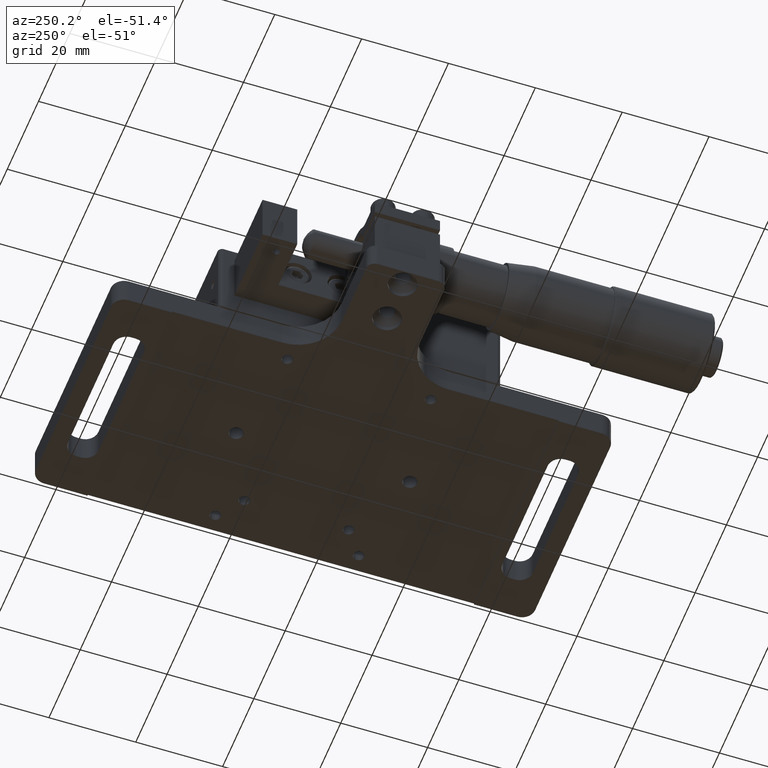
[diagram: clean part render]
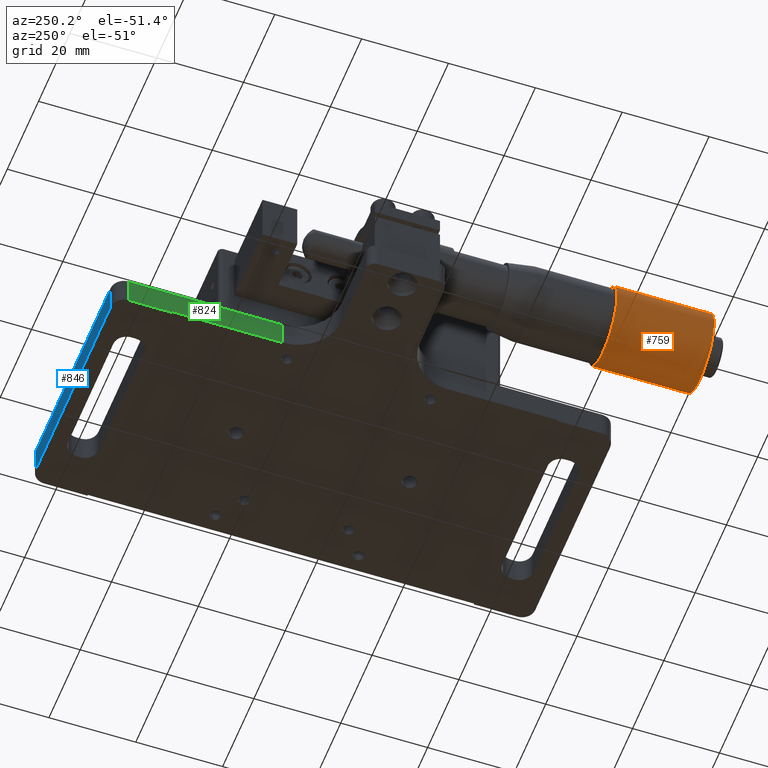
[diagram: same view with three faces highlighted in distinct colors, each labeled with its STEP entity id]
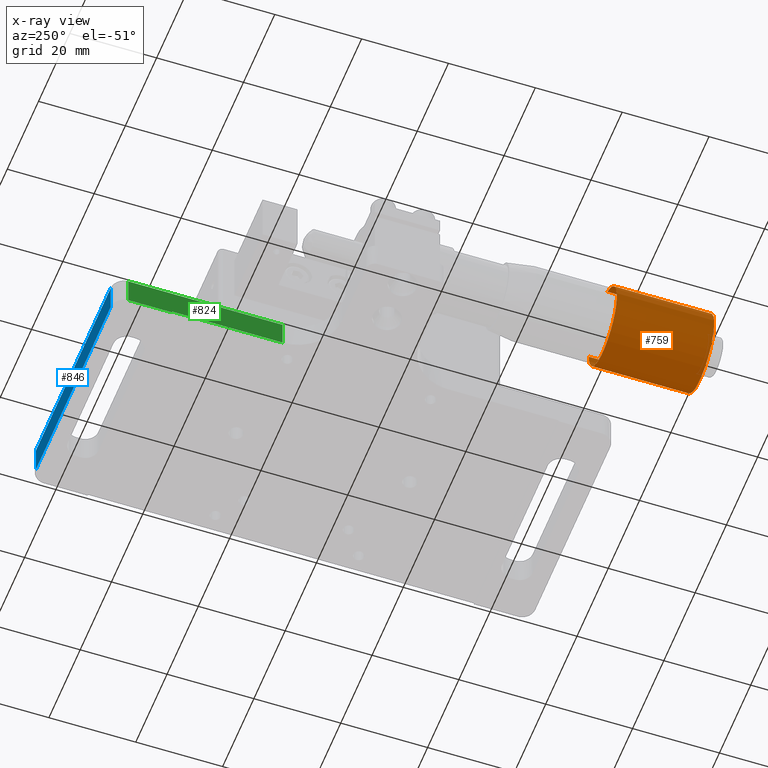
[diagram: x-ray of the same camera — body ghosted, the three highlighted faces saturated]
A machine part, auxiliary view with three faces highlighted in distinct colors.
The next image is the same camera in x-ray (body ghosted, the three faces saturated) — at least one of them is partly hidden behind the body in this view.
Their STEP definitions:

[orange] entity #759 — the highlighted face is a freeform B-spline surface patch.
#759=ADVANCED_FACE('',(#1412),#24285,.T.);
#1412=FACE_OUTER_BOUND('',#2154,.T.);
#2154=EDGE_LOOP('',(#4588,#4589,#4590,#4591,#4592,#4593));
#4588=ORIENTED_EDGE('',*,*,#20337,.T.);
#4589=ORIENTED_EDGE('',*,*,#20338,.T.);
#4590=ORIENTED_EDGE('',*,*,#20339,.T.);
#4591=ORIENTED_EDGE('',*,*,#20328,.F.);
#4592=ORIENTED_EDGE('',*,*,#20331,.F.);
#4593=ORIENTED_EDGE('',*,*,#20340,.T.);
#8201=PCURVE('',#24283,#11826);
#8204=PCURVE('',#24284,#11829);
#8213=PCURVE('',#24285,#11838);
#8214=PCURVE('',#24285,#11839);
#8215=PCURVE('',#24285,#11840);
#8216=PCURVE('',#24285,#11841);
#8217=PCURVE('',#24285,#11842);
#8218=PCURVE('',#24285,#11843);
#8220=PCURVE('',#24286,#11845);
#8222=PCURVE('',#24286,#11847);
#8224=PCURVE('',#24287,#11849);
#8230=PCURVE('',#24288,#11855);
#11826=DEFINITIONAL_REPRESENTATION('',(#15818),#50008);
#11829=DEFINITIONAL_REPRESENTATION('',(#15822),#50008);
#11838=DEFINITIONAL_REPRESENTATION('',(#15826),#50008);
#11839=DEFINITIONAL_REPRESENTATION('',(#15827),#50008);
#11840=DEFINITIONAL_REPRESENTATION('',(#15829),#50008);
#11841=DEFINITIONAL_REPRESENTATION('',(#15830),#50008);
#11842=DEFINITIONAL_REPRESENTATION('',(#15831),#50008);
#11843=DEFINITIONAL_REPRESENTATION('',(#15833),#50008);
#11845=DEFINITIONAL_REPRESENTATION('',(#15835),#50008);
#11847=DEFINITIONAL_REPRESENTATION('',(#15837),#50008);
#11849=DEFINITIONAL_REPRESENTATION('',(#15839),#50008);
#11855=DEFINITIONAL_REPRESENTATION('',(#15847),#50008);
#15818=B_SPLINE_CURVE_WITH_KNOTS('',1,(#39859,#39860),.UNSPECIFIED.,.F.,
 .F.,(2,2),(28.2743338823082,39.4229033643207),.UNSPECIFIED.);
#15822=B_SPLINE_CURVE_WITH_KNOTS('',1,(#39877,#39878),.UNSPECIFIED.,.F.,
 .F.,(2,2),(0.,28.2743338823082),.UNSPECIFIED.);
#15826=B_SPLINE_CURVE_WITH_KNOTS('',1,(#39936,#39937),.UNSPECIFIED.,.F.,
 .F.,(2,2),(-56.5486677646163,-28.2743338823081),.UNSPECIFIED.);
#15827=B_SPLINE_CURVE_WITH_KNOTS('',1,(#39941,#39942),.UNSPECIFIED.,.F.,
 .F.,(2,2),(-28.2743338823081,-17.1257644002956),.UNSPECIFIED.);
#15828=B_SPLINE_CURVE_WITH_KNOTS('',1,(#39943,#39944),.UNSPECIFIED.,.F.,
 .F.,(2,2),(2.36,24.76),.UNSPECIFIED.);
#15829=B_SPLINE_CURVE_WITH_KNOTS('',1,(#39945,#39946),.UNSPECIFIED.,.F.,
 .F.,(2,2),(2.36,24.76),.UNSPECIFIED.);
#15830=B_SPLINE_CURVE_WITH_KNOTS('',1,(#39947,#39948),.UNSPECIFIED.,.F.,
 .F.,(2,2),(28.2743338823082,39.4229033643207),.UNSPECIFIED.);
#15831=B_SPLINE_CURVE_WITH_KNOTS('',1,(#39949,#39950),.UNSPECIFIED.,.F.,
 .F.,(2,2),(0.,28.2743338823082),.UNSPECIFIED.);
#15832=B_SPLINE_CURVE_WITH_KNOTS('',1,(#39951,#39952),.UNSPECIFIED.,.F.,
 .F.,(2,2),(0.,22.4),.UNSPECIFIED.);
#15833=B_SPLINE_CURVE_WITH_KNOTS('',1,(#39953,#39954),.UNSPECIFIED.,.F.,
 .F.,(2,2),(0.,22.4),.UNSPECIFIED.);
#15835=B_SPLINE_CURVE_WITH_KNOTS('',1,(#39957,#39958),.UNSPECIFIED.,.F.,
 .F.,(2,2),(2.36,24.76),.UNSPECIFIED.);
#15837=B_SPLINE_CURVE_WITH_KNOTS('',1,(#39966,#39967),.UNSPECIFIED.,.F.,
 .F.,(2,2),(0.,22.4),.UNSPECIFIED.);
#15839=B_SPLINE_CURVE_WITH_KNOTS('',1,(#39970,#39971),.UNSPECIFIED.,.F.,
 .F.,(2,2),(-28.2743338823081,-17.1257644002956),.UNSPECIFIED.);
#15847=B_SPLINE_CURVE_WITH_KNOTS('',1,(#39986,#39987),.UNSPECIFIED.,.F.,
 .F.,(2,2),(-56.5486677646163,-28.2743338823081),.UNSPECIFIED.);
#18473=SURFACE_CURVE('',#21816,(#8201,#8216),.PCURVE_S1.);
#18476=SURFACE_CURVE('',#21818,(#8204,#8217),.PCURVE_S1.);
#18482=SURFACE_CURVE('',#21829,(#8213,#8230),.PCURVE_S1.);
#18483=SURFACE_CURVE('',#21830,(#8214,#8224),.PCURVE_S1.);
#18484=SURFACE_CURVE('',#15828,(#8215,#8220),.PCURVE_S1.);
#18485=SURFACE_CURVE('',#15832,(#8218,#8222),.PCURVE_S1.);
#20328=EDGE_CURVE('',#23308,#23315,#18473,.T.);
#20331=EDGE_CURVE('',#23307,#23308,#18476,.T.);
#20337=EDGE_CURVE('',#23313,#23316,#18482,.T.);
#20338=EDGE_CURVE('',#23316,#23314,#18483,.T.);
#20339=EDGE_CURVE('',#23314,#23315,#18484,.T.);
#20340=EDGE_CURVE('',#23307,#23313,#18485,.T.);
#21816=(
BOUNDED_CURVE()
B_SPLINE_CURVE(2,(#39856,#39857,#39858),.UNSPECIFIED.,.F.,.F.)
B_SPLINE_CURVE_WITH_KNOTS((3,3),(28.2743338823082,39.4229033643207),
 .UNSPECIFIED.)
CURVE()
GEOMETRIC_REPRESENTATION_ITEM()
RATIONAL_B_SPLINE_CURVE((1.,0.814247266582234,1.))
REPRESENTATION_ITEM('')
);
#21818=(
BOUNDED_CURVE()
B_SPLINE_CURVE(2,(#39872,#39873,#39874,#39875,#39876),.UNSPECIFIED.,.F.,
 .F.)
B_SPLINE_CURVE_WITH_KNOTS((3,2,3),(0.,14.1371669411541,28.2743338823082),
 .UNSPECIFIED.)
CURVE()
GEOMETRIC_REPRESENTATION_ITEM()
RATIONAL_B_SPLINE_CURVE((1.,0.707106781186547,1.,0.707106781186547,1.))
REPRESENTATION_ITEM('')
);
#21829=(
BOUNDED_CURVE()
B_SPLINE_CURVE(2,(#39931,#39932,#39933,#39934,#39935),.UNSPECIFIED.,.F.,
 .F.)
B_SPLINE_CURVE_WITH_KNOTS((3,2,3),(-56.5486677646163,-42.4115008234622,
-28.2743338823081),.UNSPECIFIED.)
CURVE()
GEOMETRIC_REPRESENTATION_ITEM()
RATIONAL_B_SPLINE_CURVE((1.,0.707106781186548,1.,0.707106781186548,1.))
REPRESENTATION_ITEM('')
);
#21830=(
BOUNDED_CURVE()
B_SPLINE_CURVE(2,(#39938,#39939,#39940),.UNSPECIFIED.,.F.,.F.)
B_SPLINE_CURVE_WITH_KNOTS((3,3),(-28.2743338823081,-17.1257644002956),
 .UNSPECIFIED.)
CURVE()
GEOMETRIC_REPRESENTATION_ITEM()
RATIONAL_B_SPLINE_CURVE((1.,0.814247266582233,1.))
REPRESENTATION_ITEM('')
);
#23307=VERTEX_POINT('',#30950);
#23308=VERTEX_POINT('',#30951);
#23313=VERTEX_POINT('',#30956);
#23314=VERTEX_POINT('',#30957);
#23315=VERTEX_POINT('',#30958);
#23316=VERTEX_POINT('',#30959);
#24283=(
BOUNDED_SURFACE()
B_SPLINE_SURFACE(2,1,((#28131,#28132),(#28133,#28134),(#28135,#28136),(#28137,
#28138),(#28139,#28140),(#28141,#28142),(#28143,#28144),(#28145,#28146),
(#28147,#28148)),.UNSPECIFIED.,.T.,.F.,.F.)
B_SPLINE_SURFACE_WITH_KNOTS((3,2,2,2,3),(2,2),(0.,1.5707963267949,3.14159265358979,
4.71238898038469,6.28318530717959),(0.,14.1704198949785),.UNSPECIFIED.)
GEOMETRIC_REPRESENTATION_ITEM()
RATIONAL_B_SPLINE_SURFACE(((1.,1.),(0.707106781186548,0.707106781186548),
(1.,1.),(0.707106781186548,0.707106781186548),(1.,1.),(0.707106781186548,
0.707106781186548),(1.,1.),(0.707106781186548,0.707106781186548),(1.,1.)))
REPRESENTATION_ITEM('')
SURFACE()
);
#24284=(
BOUNDED_SURFACE()
B_SPLINE_SURFACE(2,1,((#28149,#28150),(#28151,#28152),(#28153,#28154),(#28155,
#28156),(#28157,#28158),(#28159,#28160),(#28161,#28162),(#28163,#28164),
(#28165,#28166)),.UNSPECIFIED.,.T.,.F.,.F.)
B_SPLINE_SURFACE_WITH_KNOTS((3,2,2,2,3),(2,2),(0.,1.5707963267949,3.14159265358979,
4.71238898038469,6.28318530717959),(0.,14.1704198949785),.UNSPECIFIED.)
GEOMETRIC_REPRESENTATION_ITEM()
RATIONAL_B_SPLINE_SURFACE(((1.,1.),(0.707106781186548,0.707106781186548),
(1.,1.),(0.707106781186548,0.707106781186548),(1.,1.),(0.707106781186548,
0.707106781186548),(1.,1.),(0.707106781186548,0.707106781186548),(1.,1.)))
REPRESENTATION_ITEM('')
SURFACE()
);
#24285=(
BOUNDED_SURFACE()
B_SPLINE_SURFACE(2,1,((#28171,#28172),(#28173,#28174),(#28175,#28176),(#28177,
#28178),(#28179,#28180),(#28181,#28182),(#28183,#28184),(#28185,#28186),
(#28187,#28188)),.UNSPECIFIED.,.T.,.F.,.F.)
B_SPLINE_SURFACE_WITH_KNOTS((3,2,2,2,3),(2,2),(0.,1.5707963267949,3.14159265358979,
4.71238898038469,6.28318530717959),(0.,27.12),.UNSPECIFIED.)
GEOMETRIC_REPRESENTATION_ITEM()
RATIONAL_B_SPLINE_SURFACE(((1.,1.),(0.707106781186548,0.707106781186548),
(1.,1.),(0.707106781186548,0.707106781186548),(1.,1.),(0.707106781186548,
0.707106781186548),(1.,1.),(0.707106781186548,0.707106781186548),(1.,1.)))
REPRESENTATION_ITEM('')
SURFACE()
);
#24286=(
BOUNDED_SURFACE()
B_SPLINE_SURFACE(2,1,((#28189,#28190),(#28191,#28192),(#28193,#28194),(#28195,
#28196),(#28197,#28198),(#28199,#28200),(#28201,#28202),(#28203,#28204),
(#28205,#28206)),.UNSPECIFIED.,.T.,.F.,.F.)
B_SPLINE_SURFACE_WITH_KNOTS((3,2,2,2,3),(2,2),(0.,1.5707963267949,3.14159265358979,
4.71238898038469,6.28318530717959),(0.,27.12),.UNSPECIFIED.)
GEOMETRIC_REPRESENTATION_ITEM()
RATIONAL_B_SPLINE_SURFACE(((1.,1.),(0.707106781186548,0.707106781186548),
(1.,1.),(0.707106781186548,0.707106781186548),(1.,1.),(0.707106781186548,
0.707106781186548),(1.,1.),(0.707106781186548,0.707106781186548),(1.,1.)))
REPRESENTATION_ITEM('')
SURFACE()
);
#24287=(
BOUNDED_SURFACE()
B_SPLINE_SURFACE(2,1,((#28207,#28208),(#28209,#28210),(#28211,#28212),(#28213,
#28214),(#28215,#28216),(#28217,#28218),(#28219,#28220),(#28221,#28222),
(#28223,#28224)),.UNSPECIFIED.,.T.,.F.,.F.)
B_SPLINE_SURFACE_WITH_KNOTS((3,2,2,2,3),(2,2),(0.,1.5707963267949,3.14159265358979,
4.71238898038469,6.28318530717959),(0.,14.1704198949785),.UNSPECIFIED.)
GEOMETRIC_REPRESENTATION_ITEM()
RATIONAL_B_SPLINE_SURFACE(((1.,1.),(0.707106781186548,0.707106781186548),
(1.,1.),(0.707106781186548,0.707106781186548),(1.,1.),(0.707106781186548,
0.707106781186548),(1.,1.),(0.707106781186548,0.707106781186548),(1.,1.)))
REPRESENTATION_ITEM('')
SURFACE()
);
#24288=(
BOUNDED_SURFACE()
B_SPLINE_SURFACE(2,1,((#28225,#28226),(#28227,#28228),(#28229,#28230),(#28231,
#28232),(#28233,#28234),(#28235,#28236),(#28237,#28238),(#28239,#28240),
(#28241,#28242)),.UNSPECIFIED.,.T.,.F.,.F.)
B_SPLINE_SURFACE_WITH_KNOTS((3,2,2,2,3),(2,2),(0.,1.5707963267949,3.14159265358979,
4.71238898038469,6.28318530717959),(0.,14.1704198949785),.UNSPECIFIED.)
GEOMETRIC_REPRESENTATION_ITEM()
RATIONAL_B_SPLINE_SURFACE(((1.,1.),(0.707106781186548,0.707106781186548),
(1.,1.),(0.707106781186548,0.707106781186548),(1.,1.),(0.707106781186548,
0.707106781186548),(1.,1.),(0.707106781186548,0.707106781186548),(1.,1.)))
REPRESENTATION_ITEM('')
SURFACE()
);
#28131=CARTESIAN_POINT('',(-40.872950650202,3.23319641562345,96.5500000000002));
#28132=CARTESIAN_POINT('',(-37.6064584830237,-6.23941826680523,86.5300000000001));
#28133=CARTESIAN_POINT('',(-40.872950650202,3.23319641562345,96.5500000000002));
#28134=CARTESIAN_POINT('',(-47.0790731654524,-9.50591043398352,86.5300000000001));
#28135=CARTESIAN_POINT('',(-40.872950650202,3.23319641562345,96.5500000000002));
#28136=CARTESIAN_POINT('',(-50.3455653326307,-0.0332957515548427,86.5300000000001));
#28137=CARTESIAN_POINT('',(-40.872950650202,3.23319641562345,96.5500000000002));
#28138=CARTESIAN_POINT('',(-53.612057499809,9.43931893087383,86.5300000000001));
#28139=CARTESIAN_POINT('',(-40.872950650202,3.23319641562345,96.5500000000002));
#28140=CARTESIAN_POINT('',(-44.1394428173803,12.7058110980521,86.5300000000001));
#28141=CARTESIAN_POINT('',(-40.872950650202,3.23319641562345,96.5500000000002));
#28142=CARTESIAN_POINT('',(-34.6668281349516,15.9723032652304,86.5300000000001));
#28143=CARTESIAN_POINT('',(-40.872950650202,3.23319641562345,96.5500000000002));
#28144=CARTESIAN_POINT('',(-31.4003359677733,6.49968858280174,86.5300000000001));
#28145=CARTESIAN_POINT('',(-40.872950650202,3.23319641562345,96.5500000000002));
#28146=CARTESIAN_POINT('',(-28.133843800595,-2.97292609962693,86.5300000000001));
#28147=CARTESIAN_POINT('',(-40.872950650202,3.23319641562345,96.5500000000002));
#28148=CARTESIAN_POINT('',(-37.6064584830237,-6.23941826680523,86.5300000000001));
#28149=CARTESIAN_POINT('',(-40.872950650202,3.23319641562345,96.5500000000002));
#28150=CARTESIAN_POINT('',(-37.6064584830237,-6.23941826680523,86.5300000000001));
#28151=CARTESIAN_POINT('',(-40.872950650202,3.23319641562345,96.5500000000002));
#28152=CARTESIAN_POINT('',(-47.0790731654524,-9.50591043398352,86.5300000000001));
#28153=CARTESIAN_POINT('',(-40.872950650202,3.23319641562345,96.5500000000002));
#28154=CARTESIAN_POINT('',(-50.3455653326307,-0.0332957515548427,86.5300000000001));
#28155=CARTESIAN_POINT('',(-40.872950650202,3.23319641562345,96.5500000000002));
#28156=CARTESIAN_POINT('',(-53.612057499809,9.43931893087383,86.5300000000001));
#28157=CARTESIAN_POINT('',(-40.872950650202,3.23319641562345,96.5500000000002));
#28158=CARTESIAN_POINT('',(-44.1394428173803,12.7058110980521,86.5300000000001));
#28159=CARTESIAN_POINT('',(-40.872950650202,3.23319641562345,96.5500000000002));
#28160=CARTESIAN_POINT('',(-34.6668281349516,15.9723032652304,86.5300000000001));
#28161=CARTESIAN_POINT('',(-40.872950650202,3.23319641562345,96.5500000000002));
#28162=CARTESIAN_POINT('',(-31.4003359677733,6.49968858280174,86.5300000000001));
#28163=CARTESIAN_POINT('',(-40.872950650202,3.23319641562345,96.5500000000002));
#28164=CARTESIAN_POINT('',(-28.133843800595,-2.97292609962693,86.5300000000001));
#28165=CARTESIAN_POINT('',(-40.872950650202,3.23319641562345,96.5500000000002));
#28166=CARTESIAN_POINT('',(-37.6064584830237,-6.23941826680523,86.5300000000001));
#28171=CARTESIAN_POINT('',(-31.872950650202,3.23319641562345,62.7900000000001));
#28172=CARTESIAN_POINT('',(-31.872950650202,3.23319641562345,89.9100000000001));
#28173=CARTESIAN_POINT('',(-31.872950650202,12.2331964156234,62.7900000000001));
#28174=CARTESIAN_POINT('',(-31.872950650202,12.2331964156235,89.9100000000001));
#28175=CARTESIAN_POINT('',(-40.872950650202,12.2331964156235,62.7900000000001));
#28176=CARTESIAN_POINT('',(-40.872950650202,12.2331964156235,89.9100000000001));
#28177=CARTESIAN_POINT('',(-49.872950650202,12.2331964156235,62.7900000000001));
#28178=CARTESIAN_POINT('',(-49.872950650202,12.2331964156235,89.9100000000001));
#28179=CARTESIAN_POINT('',(-49.872950650202,3.23319641562345,62.7900000000001));
#28180=CARTESIAN_POINT('',(-49.872950650202,3.23319641562345,89.9100000000001));
#28181=CARTESIAN_POINT('',(-49.872950650202,-5.76680358437655,62.7900000000001));
#28182=CARTESIAN_POINT('',(-49.872950650202,-5.76680358437655,89.9100000000001));
#28183=CARTESIAN_POINT('',(-40.872950650202,-5.76680358437655,62.7900000000001));
#28184=CARTESIAN_POINT('',(-40.872950650202,-5.76680358437656,89.9100000000001));
#28185=CARTESIAN_POINT('',(-31.872950650202,-5.76680358437655,62.7900000000001));
#28186=CARTESIAN_POINT('',(-31.872950650202,-5.76680358437656,89.9100000000001));
#28187=CARTESIAN_POINT('',(-31.872950650202,3.23319641562345,62.7900000000001));
#28188=CARTESIAN_POINT('',(-31.872950650202,3.23319641562345,89.9100000000001));
#28189=CARTESIAN_POINT('',(-31.872950650202,3.23319641562345,62.7900000000001));
#28190=CARTESIAN_POINT('',(-31.872950650202,3.23319641562345,89.9100000000001));
#28191=CARTESIAN_POINT('',(-31.872950650202,12.2331964156234,62.7900000000001));
#28192=CARTESIAN_POINT('',(-31.872950650202,12.2331964156235,89.9100000000001));
#28193=CARTESIAN_POINT('',(-40.872950650202,12.2331964156235,62.7900000000001));
#28194=CARTESIAN_POINT('',(-40.872950650202,12.2331964156235,89.9100000000001));
#28195=CARTESIAN_POINT('',(-49.872950650202,12.2331964156235,62.7900000000001));
#28196=CARTESIAN_POINT('',(-49.872950650202,12.2331964156235,89.9100000000001));
#28197=CARTESIAN_POINT('',(-49.872950650202,3.23319641562345,62.7900000000001));
#28198=CARTESIAN_POINT('',(-49.872950650202,3.23319641562345,89.9100000000001));
#28199=CARTESIAN_POINT('',(-49.872950650202,-5.76680358437655,62.7900000000001));
#28200=CARTESIAN_POINT('',(-49.872950650202,-5.76680358437655,89.9100000000001));
#28201=CARTESIAN_POINT('',(-40.872950650202,-5.76680358437655,62.7900000000001));
#28202=CARTESIAN_POINT('',(-40.872950650202,-5.76680358437656,89.9100000000001));
#28203=CARTESIAN_POINT('',(-31.872950650202,-5.76680358437655,62.7900000000001));
#28204=CARTESIAN_POINT('',(-31.872950650202,-5.76680358437656,89.9100000000001));
#28205=CARTESIAN_POINT('',(-31.872950650202,3.23319641562345,62.7900000000001));
#28206=CARTESIAN_POINT('',(-31.872950650202,3.23319641562345,89.9100000000001));
#28207=CARTESIAN_POINT('',(-40.872950650202,3.23319641562345,56.15));
#28208=CARTESIAN_POINT('',(-37.6064584830237,-6.23941826680521,66.1700000000001));
#28209=CARTESIAN_POINT('',(-40.872950650202,3.23319641562345,56.15));
#28210=CARTESIAN_POINT('',(-28.1338438005951,-2.97292609962693,66.1700000000001));
#28211=CARTESIAN_POINT('',(-40.872950650202,3.23319641562345,56.15));
#28212=CARTESIAN_POINT('',(-31.4003359677733,6.49968858280173,66.1700000000001));
#28213=CARTESIAN_POINT('',(-40.872950650202,3.23319641562345,56.15));
#28214=CARTESIAN_POINT('',(-34.6668281349516,15.9723032652304,66.1700000000001));
#28215=CARTESIAN_POINT('',(-40.872950650202,3.23319641562345,56.15));
#28216=CARTESIAN_POINT('',(-44.1394428173803,12.7058110980521,66.1700000000001));
#28217=CARTESIAN_POINT('',(-40.872950650202,3.23319641562345,56.15));
#28218=CARTESIAN_POINT('',(-53.6120574998089,9.43931893087383,66.1700000000001));
#28219=CARTESIAN_POINT('',(-40.872950650202,3.23319641562345,56.15));
#28220=CARTESIAN_POINT('',(-50.3455653326307,-0.0332957515548262,66.1700000000001));
#28221=CARTESIAN_POINT('',(-40.872950650202,3.23319641562345,56.15));
#28222=CARTESIAN_POINT('',(-47.0790731654524,-9.50591043398348,66.1700000000001));
#28223=CARTESIAN_POINT('',(-40.872950650202,3.23319641562345,56.15));
#28224=CARTESIAN_POINT('',(-37.6064584830237,-6.23941826680521,66.1700000000001));
#28225=CARTESIAN_POINT('',(-40.872950650202,3.23319641562345,56.15));
#28226=CARTESIAN_POINT('',(-37.6064584830237,-6.23941826680521,66.1700000000001));
#28227=CARTESIAN_POINT('',(-40.872950650202,3.23319641562345,56.15));
#28228=CARTESIAN_POINT('',(-28.1338438005951,-2.97292609962693,66.1700000000001));
#28229=CARTESIAN_POINT('',(-40.872950650202,3.23319641562345,56.15));
#28230=CARTESIAN_POINT('',(-31.4003359677733,6.49968858280173,66.1700000000001));
#28231=CARTESIAN_POINT('',(-40.872950650202,3.23319641562345,56.15));
#28232=CARTESIAN_POINT('',(-34.6668281349516,15.9723032652304,66.1700000000001));
#28233=CARTESIAN_POINT('',(-40.872950650202,3.23319641562345,56.15));
#28234=CARTESIAN_POINT('',(-44.1394428173803,12.7058110980521,66.1700000000001));
#28235=CARTESIAN_POINT('',(-40.872950650202,3.23319641562345,56.15));
#28236=CARTESIAN_POINT('',(-53.6120574998089,9.43931893087383,66.1700000000001));
#28237=CARTESIAN_POINT('',(-40.872950650202,3.23319641562345,56.15));
#28238=CARTESIAN_POINT('',(-50.3455653326307,-0.0332957515548262,66.1700000000001));
#28239=CARTESIAN_POINT('',(-40.872950650202,3.23319641562345,56.15));
#28240=CARTESIAN_POINT('',(-47.0790731654524,-9.50591043398348,66.1700000000001));
#28241=CARTESIAN_POINT('',(-40.872950650202,3.23319641562345,56.15));
#28242=CARTESIAN_POINT('',(-37.6064584830237,-6.23941826680521,66.1700000000001));
#30950=CARTESIAN_POINT('',(-43.8069256506615,11.741532956727,87.55));
#30951=CARTESIAN_POINT('',(-37.9389756497425,-5.27514012548014,87.5500000000001));
#30956=CARTESIAN_POINT('',(-43.8069256506615,11.741532956727,65.1500000000001));
#30957=CARTESIAN_POINT('',(-31.872950650202,3.23319641562345,65.1500000000001));
#30958=CARTESIAN_POINT('',(-31.872950650202,3.23319641562345,87.5500000000001));
#30959=CARTESIAN_POINT('',(-37.9389756497425,-5.27514012548014,65.1500000000001));
#39856=CARTESIAN_POINT('',(-37.9389756497425,-5.27514012548014,87.5500000000001));
#39857=CARTESIAN_POINT('',(-31.872950650202,-3.18336042038331,87.5500000000001));
#39858=CARTESIAN_POINT('',(-31.872950650202,3.23319641562345,87.5500000000001));
#39859=CARTESIAN_POINT('',(6.28318530717959,12.7279220613579));
#39860=CARTESIAN_POINT('',(5.06048676701328,12.7279220613579));
#39872=CARTESIAN_POINT('',(-43.8069256506615,11.741532956727,87.55));
#39873=CARTESIAN_POINT('',(-52.3152621917651,8.80755795626752,87.55));
#39874=CARTESIAN_POINT('',(-49.3812871913056,0.299221415163925,87.5500000000001));
#39875=CARTESIAN_POINT('',(-46.4473121908461,-8.20911512593967,87.5500000000001));
#39876=CARTESIAN_POINT('',(-37.9389756497425,-5.27514012548014,87.5500000000001));
#39877=CARTESIAN_POINT('',(3.14159265358979,12.7279220613579));
#39878=CARTESIAN_POINT('',(0.,12.7279220613579));
#39931=CARTESIAN_POINT('',(-43.8069256506615,11.741532956727,65.1500000000001));
#39932=CARTESIAN_POINT('',(-52.3152621917651,8.8075579562675,65.1500000000001));
#39933=CARTESIAN_POINT('',(-49.3812871913056,0.299221415163929,65.1500000000001));
#39934=CARTESIAN_POINT('',(-46.447312190846,-8.20911512593965,65.1500000000001));
#39935=CARTESIAN_POINT('',(-37.9389756497425,-5.27514012548013,65.1500000000001));
#39936=CARTESIAN_POINT('',(1.91889411342349,2.36));
#39937=CARTESIAN_POINT('',(5.06048676701328,2.36));
#39938=CARTESIAN_POINT('',(-37.9389756497425,-5.27514012548014,65.1500000000001));
#39939=CARTESIAN_POINT('',(-31.872950650202,-3.18336042038331,65.1500000000001));
#39940=CARTESIAN_POINT('',(-31.872950650202,3.23319641562345,65.1500000000001));
#39941=CARTESIAN_POINT('',(5.06048676701328,2.36));
#39942=CARTESIAN_POINT('',(6.28318530717959,2.36));
#39943=CARTESIAN_POINT('',(-31.872950650202,3.23319641562345,65.1500000000001));
#39944=CARTESIAN_POINT('',(-31.872950650202,3.23319641562345,87.5500000000001));
#39945=CARTESIAN_POINT('',(6.28318530717959,2.36));
#39946=CARTESIAN_POINT('',(6.28318530717959,24.76));
#39947=CARTESIAN_POINT('',(5.06048676701328,24.76));
#39948=CARTESIAN_POINT('',(6.28318530717959,24.76));
#39949=CARTESIAN_POINT('',(1.91889411342349,24.76));
#39950=CARTESIAN_POINT('',(5.06048676701328,24.76));
#39951=CARTESIAN_POINT('',(-43.8069256506615,11.741532956727,87.55));
#39952=CARTESIAN_POINT('',(-43.8069256506615,11.741532956727,65.1500000000001));
#39953=CARTESIAN_POINT('',(1.91889411342349,24.76));
#39954=CARTESIAN_POINT('',(1.91889411342349,2.36));
#39957=CARTESIAN_POINT('',(0.,2.36));
#39958=CARTESIAN_POINT('',(0.,24.76));
#39966=CARTESIAN_POINT('',(1.91889411342349,24.76));
#39967=CARTESIAN_POINT('',(1.91889411342349,2.36));
#39970=CARTESIAN_POINT('',(0.,12.7279220613579));
#39971=CARTESIAN_POINT('',(1.2226985401663,12.7279220613579));
#39986=CARTESIAN_POINT('',(3.14159265358979,12.7279220613579));
#39987=CARTESIAN_POINT('',(6.28318530717959,12.7279220613579));
#50008=(
GEOMETRIC_REPRESENTATION_CONTEXT(2)
PARAMETRIC_REPRESENTATION_CONTEXT()
REPRESENTATION_CONTEXT('pspace','')
);

[blue] entity #846 — the highlighted face is a freeform B-spline surface patch.
#846=ADVANCED_FACE('',(#1499),#24051,.T.);
#1499=FACE_OUTER_BOUND('',#2248,.T.);
#2248=EDGE_LOOP('',(#5027,#5028,#5029,#5030));
#5027=ORIENTED_EDGE('',*,*,#20584,.T.);
#5028=ORIENTED_EDGE('',*,*,#20533,.F.);
#5029=ORIENTED_EDGE('',*,*,#20583,.F.);
#5030=ORIENTED_EDGE('',*,*,#20585,.T.);
#8573=PCURVE('',#24043,#12198);
#8651=PCURVE('',#24335,#12276);
#8652=PCURVE('',#24051,#12277);
#8653=PCURVE('',#24051,#12278);
#8654=PCURVE('',#24051,#12279);
#8655=PCURVE('',#24051,#12280);
#8657=PCURVE('',#24336,#12282);
#8854=PCURVE('',#24061,#12479);
#12198=DEFINITIONAL_REPRESENTATION('',(#16191),#50008);
#12276=DEFINITIONAL_REPRESENTATION('',(#16294),#50008);
#12277=DEFINITIONAL_REPRESENTATION('',(#16296),#50008);
#12278=DEFINITIONAL_REPRESENTATION('',(#16297),#50008);
#12279=DEFINITIONAL_REPRESENTATION('',(#16298),#50008);
#12280=DEFINITIONAL_REPRESENTATION('',(#16300),#50008);
#12282=DEFINITIONAL_REPRESENTATION('',(#16302),#50008);
#12479=DEFINITIONAL_REPRESENTATION('',(#16480),#50008);
#16190=B_SPLINE_CURVE_WITH_KNOTS('',1,(#41547,#41548),.UNSPECIFIED.,.F.,
 .F.,(2,2),(-48.,0.),.UNSPECIFIED.);
#16191=B_SPLINE_CURVE_WITH_KNOTS('',1,(#41549,#41550),.UNSPECIFIED.,.F.,
 .F.,(2,2),(-48.,0.),.UNSPECIFIED.);
#16293=B_SPLINE_CURVE_WITH_KNOTS('',1,(#41828,#41829),.UNSPECIFIED.,.F.,
 .F.,(2,2),(0.,6.49999999999997),.UNSPECIFIED.);
#16294=B_SPLINE_CURVE_WITH_KNOTS('',1,(#41830,#41831),.UNSPECIFIED.,.F.,
 .F.,(2,2),(0.,6.49999999999997),.UNSPECIFIED.);
#16295=B_SPLINE_CURVE_WITH_KNOTS('',1,(#41832,#41833),.UNSPECIFIED.,.F.,
 .F.,(2,2),(-6.49999999999997,0.),.UNSPECIFIED.);
#16296=B_SPLINE_CURVE_WITH_KNOTS('',1,(#41834,#41835),.UNSPECIFIED.,.F.,
 .F.,(2,2),(-6.49999999999997,0.),.UNSPECIFIED.);
#16297=B_SPLINE_CURVE_WITH_KNOTS('',1,(#41836,#41837),.UNSPECIFIED.,.F.,
 .F.,(2,2),(-48.,0.),.UNSPECIFIED.);
#16298=B_SPLINE_CURVE_WITH_KNOTS('',1,(#41838,#41839),.UNSPECIFIED.,.F.,
 .F.,(2,2),(0.,6.49999999999997),.UNSPECIFIED.);
#16299=B_SPLINE_CURVE_WITH_KNOTS('',1,(#41840,#41841),.UNSPECIFIED.,.F.,
 .F.,(2,2),(0.,48.),.UNSPECIFIED.);
#16300=B_SPLINE_CURVE_WITH_KNOTS('',1,(#41842,#41843),.UNSPECIFIED.,.F.,
 .F.,(2,2),(0.,48.),.UNSPECIFIED.);
#16302=B_SPLINE_CURVE_WITH_KNOTS('',1,(#41846,#41847),.UNSPECIFIED.,.F.,
 .F.,(2,2),(-6.49999999999997,0.),.UNSPECIFIED.);
#16480=B_SPLINE_CURVE_WITH_KNOTS('',1,(#42546,#42547),.UNSPECIFIED.,.F.,
 .F.,(2,2),(0.,48.),.UNSPECIFIED.);
#18678=SURFACE_CURVE('',#16190,(#8573,#8653),.PCURVE_S1.);
#18728=SURFACE_CURVE('',#16293,(#8651,#8654),.PCURVE_S1.);
#18729=SURFACE_CURVE('',#16295,(#8652,#8657),.PCURVE_S1.);
#18730=SURFACE_CURVE('',#16299,(#8655,#8854),.PCURVE_S1.);
#20533=EDGE_CURVE('',#23445,#23446,#18678,.T.);
#20583=EDGE_CURVE('',#23477,#23445,#18728,.T.);
#20584=EDGE_CURVE('',#23478,#23446,#18729,.T.);
#20585=EDGE_CURVE('',#23477,#23478,#18730,.T.);
#23445=VERTEX_POINT('',#31088);
#23446=VERTEX_POINT('',#31089);
#23477=VERTEX_POINT('',#31120);
#23478=VERTEX_POINT('',#31121);
#24043=B_SPLINE_SURFACE_WITH_KNOTS('',1,1,((#29021,#29022),(#29023,#29024)),
 .UNSPECIFIED.,.F.,.F.,.F.,(2,2),(2,2),(-101.084747669385,-85.2447476693846),
(-32.52,32.52),.UNSPECIFIED.);
#24051=B_SPLINE_SURFACE_WITH_KNOTS('',1,1,((#29233,#29234),(#29235,#29236)),
 .UNSPECIFIED.,.F.,.F.,.F.,(2,2),(2,2),(-5.26999999999997,2.77),(-1.92,
55.92),.UNSPECIFIED.);
#24061=B_SPLINE_SURFACE_WITH_KNOTS('',1,1,((#29687,#29688),(#29689,#29690)),
 .UNSPECIFIED.,.F.,.F.,.F.,(2,2),(2,2),(-35.2700000000001,62.7700000000001),
(-69.12,69.12),.UNSPECIFIED.);
#24335=(
BOUNDED_SURFACE()
B_SPLINE_SURFACE(2,1,((#29215,#29216),(#29217,#29218),(#29219,#29220),(#29221,
#29222),(#29223,#29224),(#29225,#29226),(#29227,#29228),(#29229,#29230),
(#29231,#29232)),.UNSPECIFIED.,.T.,.F.,.F.)
B_SPLINE_SURFACE_WITH_KNOTS((3,2,2,2,3),(2,2),(0.,1.5707963267949,3.14159265358979,
4.71238898038469,6.28318530717959),(0.,8.03999999999997),.UNSPECIFIED.)
GEOMETRIC_REPRESENTATION_ITEM()
RATIONAL_B_SPLINE_SURFACE(((1.,1.),(0.707106781186548,0.707106781186548),
(1.,1.),(0.707106781186548,0.707106781186548),(1.,1.),(0.707106781186548,
0.707106781186548),(1.,1.),(0.707106781186548,0.707106781186548),(1.,1.)))
REPRESENTATION_ITEM('')
SURFACE()
);
#24336=(
BOUNDED_SURFACE()
B_SPLINE_SURFACE(2,1,((#29237,#29238),(#29239,#29240),(#29241,#29242),(#29243,
#29244),(#29245,#29246),(#29247,#29248),(#29249,#29250),(#29251,#29252),
(#29253,#29254)),.UNSPECIFIED.,.T.,.F.,.F.)
B_SPLINE_SURFACE_WITH_KNOTS((3,2,2,2,3),(2,2),(0.,1.5707963267949,3.14159265358979,
4.71238898038469,6.28318530717959),(0.,8.03999999999996),.UNSPECIFIED.)
GEOMETRIC_REPRESENTATION_ITEM()
RATIONAL_B_SPLINE_SURFACE(((1.,1.),(0.707106781186548,0.707106781186548),
(1.,1.),(0.707106781186548,0.707106781186548),(1.,1.),(0.707106781186548,
0.707106781186548),(1.,1.),(0.707106781186548,0.707106781186548),(1.,1.)))
REPRESENTATION_ITEM('')
SURFACE()
);
#29021=CARTESIAN_POINT('',(33.147049349798,-14.7668035843765,-43.27));
#29022=CARTESIAN_POINT('',(-31.892950650202,-14.7668035843765,-43.27));
#29023=CARTESIAN_POINT('',(33.147049349798,-14.7668035843765,-27.43));
#29024=CARTESIAN_POINT('',(-31.892950650202,-14.7668035843765,-27.43));
#29215=CARTESIAN_POINT('',(-20.372950650202,-7.49680358437653,-38.85));
#29216=CARTESIAN_POINT('',(-20.372950650202,-15.5368035843765,-38.85));
#29217=CARTESIAN_POINT('',(-20.372950650202,-7.49680358437653,-35.85));
#29218=CARTESIAN_POINT('',(-20.372950650202,-15.5368035843765,-35.85));
#29219=CARTESIAN_POINT('',(-23.372950650202,-7.49680358437653,-35.85));
#29220=CARTESIAN_POINT('',(-23.372950650202,-15.5368035843765,-35.85));
#29221=CARTESIAN_POINT('',(-26.372950650202,-7.49680358437653,-35.85));
#29222=CARTESIAN_POINT('',(-26.372950650202,-15.5368035843765,-35.85));
#29223=CARTESIAN_POINT('',(-26.372950650202,-7.49680358437653,-38.85));
#29224=CARTESIAN_POINT('',(-26.372950650202,-15.5368035843765,-38.85));
#29225=CARTESIAN_POINT('',(-26.372950650202,-7.49680358437653,-41.85));
#29226=CARTESIAN_POINT('',(-26.372950650202,-15.5368035843765,-41.85));
#29227=CARTESIAN_POINT('',(-23.372950650202,-7.49680358437653,-41.85));
#29228=CARTESIAN_POINT('',(-23.372950650202,-15.5368035843765,-41.85));
#29229=CARTESIAN_POINT('',(-20.372950650202,-7.49680358437653,-41.85));
#29230=CARTESIAN_POINT('',(-20.372950650202,-15.5368035843765,-41.85));
#29231=CARTESIAN_POINT('',(-20.372950650202,-7.49680358437653,-38.85));
#29232=CARTESIAN_POINT('',(-20.372950650202,-15.5368035843765,-38.85));
#29233=CARTESIAN_POINT('',(29.547049349798,-7.49680358437653,-41.85));
#29234=CARTESIAN_POINT('',(-28.292950650202,-7.49680358437653,-41.85));
#29235=CARTESIAN_POINT('',(29.547049349798,-15.5368035843765,-41.85));
#29236=CARTESIAN_POINT('',(-28.292950650202,-15.5368035843765,-41.85));
#29237=CARTESIAN_POINT('',(21.627049349798,-7.49680358437653,-38.85));
#29238=CARTESIAN_POINT('',(21.627049349798,-15.5368035843765,-38.85));
#29239=CARTESIAN_POINT('',(21.627049349798,-7.49680358437653,-41.85));
#29240=CARTESIAN_POINT('',(21.627049349798,-15.5368035843765,-41.85));
#29241=CARTESIAN_POINT('',(24.627049349798,-7.49680358437653,-41.85));
#29242=CARTESIAN_POINT('',(24.627049349798,-15.5368035843765,-41.85));
#29243=CARTESIAN_POINT('',(27.627049349798,-7.49680358437653,-41.85));
#29244=CARTESIAN_POINT('',(27.627049349798,-15.5368035843765,-41.85));
#29245=CARTESIAN_POINT('',(27.627049349798,-7.49680358437653,-38.85));
#29246=CARTESIAN_POINT('',(27.627049349798,-15.5368035843765,-38.85));
#29247=CARTESIAN_POINT('',(27.627049349798,-7.49680358437653,-35.85));
#29248=CARTESIAN_POINT('',(27.627049349798,-15.5368035843765,-35.85));
#29249=CARTESIAN_POINT('',(24.627049349798,-7.49680358437653,-35.85));
#29250=CARTESIAN_POINT('',(24.627049349798,-15.5368035843765,-35.85));
#29251=CARTESIAN_POINT('',(21.627049349798,-7.49680358437653,-35.85));
#29252=CARTESIAN_POINT('',(21.627049349798,-15.5368035843765,-35.85));
#29253=CARTESIAN_POINT('',(21.627049349798,-7.49680358437653,-38.85));
#29254=CARTESIAN_POINT('',(21.627049349798,-15.5368035843765,-38.85));
#29687=CARTESIAN_POINT('',(35.8970493497981,-8.26680358437653,-53.47));
#29688=CARTESIAN_POINT('',(35.8970493497982,-8.26680358437653,84.77));
#29689=CARTESIAN_POINT('',(-62.1429506502021,-8.26680358437654,-53.47));
#29690=CARTESIAN_POINT('',(-62.142950650202,-8.26680358437654,84.77));
#31088=CARTESIAN_POINT('',(-23.372950650202,-14.7668035843765,-41.85));
#31089=CARTESIAN_POINT('',(24.627049349798,-14.7668035843765,-41.85));
#31120=CARTESIAN_POINT('',(-23.372950650202,-8.26680358437653,-41.85));
#31121=CARTESIAN_POINT('',(24.627049349798,-8.26680358437653,-41.85));
#41547=CARTESIAN_POINT('',(-23.372950650202,-14.7668035843765,-41.85));
#41548=CARTESIAN_POINT('',(24.627049349798,-14.7668035843765,-41.85));
#41549=CARTESIAN_POINT('',(-99.6647476693846,24.));
#41550=CARTESIAN_POINT('',(-99.6647476693846,-24.));
#41828=CARTESIAN_POINT('',(-23.372950650202,-8.26680358437653,-41.85));
#41829=CARTESIAN_POINT('',(-23.372950650202,-14.7668035843765,-41.85));
#41830=CARTESIAN_POINT('',(4.71238898038469,0.77));
#41831=CARTESIAN_POINT('',(4.71238898038469,7.26999999999997));
#41832=CARTESIAN_POINT('',(24.627049349798,-8.26680358437653,-41.85));
#41833=CARTESIAN_POINT('',(24.627049349798,-14.7668035843765,-41.85));
#41834=CARTESIAN_POINT('',(-4.49999999999997,3.));
#41835=CARTESIAN_POINT('',(2.,3.));
#41836=CARTESIAN_POINT('',(1.99999999999999,51.));
#41837=CARTESIAN_POINT('',(2.,3.));
#41838=CARTESIAN_POINT('',(-4.49999999999998,51.));
#41839=CARTESIAN_POINT('',(1.99999999999999,51.));
#41840=CARTESIAN_POINT('',(-23.372950650202,-8.26680358437653,-41.85));
#41841=CARTESIAN_POINT('',(24.627049349798,-8.26680358437653,-41.85));
#41842=CARTESIAN_POINT('',(-4.49999999999998,51.));
#41843=CARTESIAN_POINT('',(-4.49999999999997,3.));
#41846=CARTESIAN_POINT('',(1.5707963267949,0.769999999999999));
#41847=CARTESIAN_POINT('',(1.5707963267949,7.26999999999997));
#42546=CARTESIAN_POINT('',(24.,-57.5));
#42547=CARTESIAN_POINT('',(-24.,-57.5));
#50008=(
GEOMETRIC_REPRESENTATION_CONTEXT(2)
PARAMETRIC_REPRESENTATION_CONTEXT()
REPRESENTATION_CONTEXT('pspace','')
);

[green] entity #824 — the highlighted face is a freeform B-spline surface patch.
#824=ADVANCED_FACE('',(#1477),#24040,.T.);
#1477=FACE_OUTER_BOUND('',#2225,.T.);
#2225=EDGE_LOOP('',(#4927,#4928,#4929,#4930,#4931,#4932));
#4927=ORIENTED_EDGE('',*,*,#20515,.T.);
#4928=ORIENTED_EDGE('',*,*,#20516,.T.);
#4929=ORIENTED_EDGE('',*,*,#20517,.T.);
#4930=ORIENTED_EDGE('',*,*,#20518,.T.);
#4931=ORIENTED_EDGE('',*,*,#20519,.T.);
#4932=ORIENTED_EDGE('',*,*,#20520,.T.);
#8552=PCURVE('',#24040,#12177);
#8553=PCURVE('',#24040,#12178);
#8554=PCURVE('',#24040,#12179);
#8555=PCURVE('',#24040,#12180);
#8556=PCURVE('',#24040,#12181);
#8557=PCURVE('',#24040,#12182);
#8571=PCURVE('',#24043,#12196);
#8649=PCURVE('',#24335,#12274);
#8700=PCURVE('',#24340,#12325);
#8708=PCURVE('',#24056,#12333);
#8748=PCURVE('',#24058,#12373);
#8856=PCURVE('',#24061,#12481);
#12177=DEFINITIONAL_REPRESENTATION('',(#16156),#50008);
#12178=DEFINITIONAL_REPRESENTATION('',(#16158),#50008);
#12179=DEFINITIONAL_REPRESENTATION('',(#16160),#50008);
#12180=DEFINITIONAL_REPRESENTATION('',(#16162),#50008);
#12181=DEFINITIONAL_REPRESENTATION('',(#16164),#50008);
#12182=DEFINITIONAL_REPRESENTATION('',(#16166),#50008);
#12196=DEFINITIONAL_REPRESENTATION('',(#16189),#50008);
#12274=DEFINITIONAL_REPRESENTATION('',(#16291),#50008);
#12325=DEFINITIONAL_REPRESENTATION('',(#16351),#50008);
#12333=DEFINITIONAL_REPRESENTATION('',(#16356),#50008);
#12373=DEFINITIONAL_REPRESENTATION('',(#16367),#50008);
#12481=DEFINITIONAL_REPRESENTATION('',(#16481),#50008);
#16155=B_SPLINE_CURVE_WITH_KNOTS('',1,(#41465,#41466),.UNSPECIFIED.,.F.,
 .F.,(2,2),(0.,25.5),.UNSPECIFIED.);
#16156=B_SPLINE_CURVE_WITH_KNOTS('',1,(#41467,#41468),.UNSPECIFIED.,.F.,
 .F.,(2,2),(0.,25.5),.UNSPECIFIED.);
#16157=B_SPLINE_CURVE_WITH_KNOTS('',1,(#41469,#41470),.UNSPECIFIED.,.F.,
 .F.,(2,2),(-6.19999999999997,0.),.UNSPECIFIED.);
#16158=B_SPLINE_CURVE_WITH_KNOTS('',1,(#41471,#41472),.UNSPECIFIED.,.F.,
 .F.,(2,2),(-6.19999999999997,0.),.UNSPECIFIED.);
#16159=B_SPLINE_CURVE_WITH_KNOTS('',1,(#41473,#41474),.UNSPECIFIED.,.F.,
 .F.,(2,2),(0.,35.5),.UNSPECIFIED.);
#16160=B_SPLINE_CURVE_WITH_KNOTS('',1,(#41475,#41476),.UNSPECIFIED.,.F.,
 .F.,(2,2),(0.,35.5),.UNSPECIFIED.);
#16161=B_SPLINE_CURVE_WITH_KNOTS('',1,(#41477,#41478),.UNSPECIFIED.,.F.,
 .F.,(2,2),(-6.49999999999997,0.),.UNSPECIFIED.);
#16162=B_SPLINE_CURVE_WITH_KNOTS('',1,(#41479,#41480),.UNSPECIFIED.,.F.,
 .F.,(2,2),(-6.49999999999997,0.),.UNSPECIFIED.);
#16163=B_SPLINE_CURVE_WITH_KNOTS('',1,(#41481,#41482),.UNSPECIFIED.,.F.,
 .F.,(2,2),(0.,10.),.UNSPECIFIED.);
#16164=B_SPLINE_CURVE_WITH_KNOTS('',1,(#41483,#41484),.UNSPECIFIED.,.F.,
 .F.,(2,2),(0.,10.),.UNSPECIFIED.);
#16165=B_SPLINE_CURVE_WITH_KNOTS('',1,(#41485,#41486),.UNSPECIFIED.,.F.,
 .F.,(2,2),(0.,0.300000000000001),.UNSPECIFIED.);
#16166=B_SPLINE_CURVE_WITH_KNOTS('',1,(#41487,#41488),.UNSPECIFIED.,.F.,
 .F.,(2,2),(0.,0.300000000000001),.UNSPECIFIED.);
#16189=B_SPLINE_CURVE_WITH_KNOTS('',1,(#41539,#41540),.UNSPECIFIED.,.F.,
 .F.,(2,2),(0.,10.),.UNSPECIFIED.);
#16291=B_SPLINE_CURVE_WITH_KNOTS('',1,(#41821,#41822),.UNSPECIFIED.,.F.,
 .F.,(2,2),(-6.49999999999997,0.),.UNSPECIFIED.);
#16351=B_SPLINE_CURVE_WITH_KNOTS('',1,(#41986,#41987),.UNSPECIFIED.,.F.,
 .F.,(2,2),(-6.19999999999997,0.),.UNSPECIFIED.);
#16356=B_SPLINE_CURVE_WITH_KNOTS('',1,(#42008,#42009),.UNSPECIFIED.,.F.,
 .F.,(2,2),(0.,25.5),.UNSPECIFIED.);
#16367=B_SPLINE_CURVE_WITH_KNOTS('',1,(#42209,#42210),.UNSPECIFIED.,.F.,
 .F.,(2,2),(0.,0.300000000000001),.UNSPECIFIED.);
#16481=B_SPLINE_CURVE_WITH_KNOTS('',1,(#42551,#42552),.UNSPECIFIED.,.F.,
 .F.,(2,2),(0.,35.5),.UNSPECIFIED.);
#18660=SURFACE_CURVE('',#16155,(#8552,#8708),.PCURVE_S1.);
#18661=SURFACE_CURVE('',#16157,(#8553,#8700),.PCURVE_S1.);
#18662=SURFACE_CURVE('',#16159,(#8554,#8856),.PCURVE_S1.);
#18663=SURFACE_CURVE('',#16161,(#8555,#8649),.PCURVE_S1.);
#18664=SURFACE_CURVE('',#16163,(#8556,#8571),.PCURVE_S1.);
#18665=SURFACE_CURVE('',#16165,(#8557,#8748),.PCURVE_S1.);
#20515=EDGE_CURVE('',#23431,#23432,#18660,.T.);
#20516=EDGE_CURVE('',#23432,#23433,#18661,.T.);
#20517=EDGE_CURVE('',#23433,#23434,#18662,.T.);
#20518=EDGE_CURVE('',#23434,#23435,#18663,.T.);
#20519=EDGE_CURVE('',#23435,#23436,#18664,.T.);
#20520=EDGE_CURVE('',#23436,#23431,#18665,.T.);
#23431=VERTEX_POINT('',#31074);
#23432=VERTEX_POINT('',#31075);
#23433=VERTEX_POINT('',#31076);
#23434=VERTEX_POINT('',#31077);
#23435=VERTEX_POINT('',#31078);
#23436=VERTEX_POINT('',#31079);
#24040=B_SPLINE_SURFACE_WITH_KNOTS('',1,1,((#28991,#28992),(#28993,#28994)),
 .UNSPECIFIED.,.F.,.F.,.F.,(2,2),(2,2),(-0.769999999999997,7.26999999999997),
(-30.17,12.67),.UNSPECIFIED.);
#24043=B_SPLINE_SURFACE_WITH_KNOTS('',1,1,((#29021,#29022),(#29023,#29024)),
 .UNSPECIFIED.,.F.,.F.,.F.,(2,2),(2,2),(-101.084747669385,-85.2447476693846),
(-32.52,32.52),.UNSPECIFIED.);
#24056=B_SPLINE_SURFACE_WITH_KNOTS('',1,1,((#29343,#29344),(#29345,#29346)),
 .UNSPECIFIED.,.F.,.F.,.F.,(2,2),(2,2),(-53.52,53.52),(-42.6138701326207,
55.4261298673795),.UNSPECIFIED.);
#24058=B_SPLINE_SURFACE_WITH_KNOTS('',1,1,((#29351,#29352),(#29353,#29354)),
 .UNSPECIFIED.,.F.,.F.,.F.,(2,2),(2,2),(-59.5199999999999,5.51999999999999),
(-1.05,0.750000000000006),.UNSPECIFIED.);
#24061=B_SPLINE_SURFACE_WITH_KNOTS('',1,1,((#29687,#29688),(#29689,#29690)),
 .UNSPECIFIED.,.F.,.F.,.F.,(2,2),(2,2),(-35.2700000000001,62.7700000000001),
(-69.12,69.12),.UNSPECIFIED.);
#24335=(
BOUNDED_SURFACE()
B_SPLINE_SURFACE(2,1,((#29215,#29216),(#29217,#29218),(#29219,#29220),(#29221,
#29222),(#29223,#29224),(#29225,#29226),(#29227,#29228),(#29229,#29230),
(#29231,#29232)),.UNSPECIFIED.,.T.,.F.,.F.)
B_SPLINE_SURFACE_WITH_KNOTS((3,2,2,2,3),(2,2),(0.,1.5707963267949,3.14159265358979,
4.71238898038469,6.28318530717959),(0.,8.03999999999997),.UNSPECIFIED.)
GEOMETRIC_REPRESENTATION_ITEM()
RATIONAL_B_SPLINE_SURFACE(((1.,1.),(0.707106781186548,0.707106781186548),
(1.,1.),(0.707106781186548,0.707106781186548),(1.,1.),(0.707106781186548,
0.707106781186548),(1.,1.),(0.707106781186548,0.707106781186548),(1.,1.)))
REPRESENTATION_ITEM('')
SURFACE()
);
#24340=(
BOUNDED_SURFACE()
B_SPLINE_SURFACE(1,2,((#29325,#29326,#29327,#29328,#29329,#29330,#29331,
#29332,#29333),(#29334,#29335,#29336,#29337,#29338,#29339,#29340,#29341,
#29342)),.UNSPECIFIED.,.F.,.F.,.F.)
B_SPLINE_SURFACE_WITH_KNOTS((2,2),(3,2,2,2,3),(0.,7.67999999999996),(0.,
1.5707963267949,3.14159265358979,4.71238898038469,6.28318530717959),
 .UNSPECIFIED.)
GEOMETRIC_REPRESENTATION_ITEM()
RATIONAL_B_SPLINE_SURFACE(((1.,0.707106781186548,1.,0.707106781186548,1.,
0.707106781186548,1.,0.707106781186548,1.),(1.,0.707106781186548,1.,0.707106781186548,
1.,0.707106781186548,1.,0.707106781186548,1.)))
REPRESENTATION_ITEM('')
SURFACE()
);
#28991=CARTESIAN_POINT('',(-26.372950650202,-7.49680358437653,-42.52));
#28992=CARTESIAN_POINT('',(-26.372950650202,-7.49680358437653,0.31999999999999));
#28993=CARTESIAN_POINT('',(-26.372950650202,-15.5368035843765,-42.52));
#28994=CARTESIAN_POINT('',(-26.372950650202,-15.5368035843765,0.31999999999999));
#29021=CARTESIAN_POINT('',(33.147049349798,-14.7668035843765,-43.27));
#29022=CARTESIAN_POINT('',(-31.892950650202,-14.7668035843765,-43.27));
#29023=CARTESIAN_POINT('',(33.147049349798,-14.7668035843765,-27.43));
#29024=CARTESIAN_POINT('',(-31.892950650202,-14.7668035843765,-27.43));
#29215=CARTESIAN_POINT('',(-20.372950650202,-7.49680358437653,-38.85));
#29216=CARTESIAN_POINT('',(-20.372950650202,-15.5368035843765,-38.85));
#29217=CARTESIAN_POINT('',(-20.372950650202,-7.49680358437653,-35.85));
#29218=CARTESIAN_POINT('',(-20.372950650202,-15.5368035843765,-35.85));
#29219=CARTESIAN_POINT('',(-23.372950650202,-7.49680358437653,-35.85));
#29220=CARTESIAN_POINT('',(-23.372950650202,-15.5368035843765,-35.85));
#29221=CARTESIAN_POINT('',(-26.372950650202,-7.49680358437653,-35.85));
#29222=CARTESIAN_POINT('',(-26.372950650202,-15.5368035843765,-35.85));
#29223=CARTESIAN_POINT('',(-26.372950650202,-7.49680358437653,-38.85));
#29224=CARTESIAN_POINT('',(-26.372950650202,-15.5368035843765,-38.85));
#29225=CARTESIAN_POINT('',(-26.372950650202,-7.49680358437653,-41.85));
#29226=CARTESIAN_POINT('',(-26.372950650202,-15.5368035843765,-41.85));
#29227=CARTESIAN_POINT('',(-23.372950650202,-7.49680358437653,-41.85));
#29228=CARTESIAN_POINT('',(-23.372950650202,-15.5368035843765,-41.85));
#29229=CARTESIAN_POINT('',(-20.372950650202,-7.49680358437653,-41.85));
#29230=CARTESIAN_POINT('',(-20.372950650202,-15.5368035843765,-41.85));
#29231=CARTESIAN_POINT('',(-20.372950650202,-7.49680358437653,-38.85));
#29232=CARTESIAN_POINT('',(-20.372950650202,-15.5368035843765,-38.85));
#29325=CARTESIAN_POINT('',(-46.372950650202,-15.2068035843765,-3.35));
#29326=CARTESIAN_POINT('',(-46.372950650202,-15.2068035843765,6.65));
#29327=CARTESIAN_POINT('',(-36.372950650202,-15.2068035843765,6.65));
#29328=CARTESIAN_POINT('',(-26.372950650202,-15.2068035843765,6.65));
#29329=CARTESIAN_POINT('',(-26.372950650202,-15.2068035843765,-3.35));
#29330=CARTESIAN_POINT('',(-26.372950650202,-15.2068035843765,-13.35));
#29331=CARTESIAN_POINT('',(-36.372950650202,-15.2068035843765,-13.35));
#29332=CARTESIAN_POINT('',(-46.372950650202,-15.2068035843765,-13.35));
#29333=CARTESIAN_POINT('',(-46.372950650202,-15.2068035843765,-3.35));
#29334=CARTESIAN_POINT('',(-46.372950650202,-7.52680358437653,-3.35));
#29335=CARTESIAN_POINT('',(-46.372950650202,-7.52680358437653,6.65));
#29336=CARTESIAN_POINT('',(-36.372950650202,-7.52680358437653,6.65));
#29337=CARTESIAN_POINT('',(-26.372950650202,-7.52680358437653,6.65));
#29338=CARTESIAN_POINT('',(-26.372950650202,-7.52680358437653,-3.35));
#29339=CARTESIAN_POINT('',(-26.372950650202,-7.52680358437653,-13.35));
#29340=CARTESIAN_POINT('',(-36.372950650202,-7.52680358437653,-13.35));
#29341=CARTESIAN_POINT('',(-46.372950650202,-7.52680358437653,-13.35));
#29342=CARTESIAN_POINT('',(-46.372950650202,-7.52680358437653,-3.35));
#29343=CARTESIAN_POINT('',(35.8970493497981,-14.4668035843765,-37.87));
#29344=CARTESIAN_POINT('',(-62.142950650202,-14.4668035843765,-37.87));
#29345=CARTESIAN_POINT('',(35.8970493497982,-14.4668035843765,69.17));
#29346=CARTESIAN_POINT('',(-62.142950650202,-14.4668035843765,69.17));
#29351=CARTESIAN_POINT('',(33.147049349798,-13.7168035843765,-28.85));
#29352=CARTESIAN_POINT('',(33.147049349798,-15.5168035843765,-28.85));
#29353=CARTESIAN_POINT('',(-31.8929506502019,-13.7168035843765,-28.85));
#29354=CARTESIAN_POINT('',(-31.8929506502019,-15.5168035843765,-28.85));
#29687=CARTESIAN_POINT('',(35.8970493497981,-8.26680358437653,-53.47));
#29688=CARTESIAN_POINT('',(35.8970493497982,-8.26680358437653,84.77));
#29689=CARTESIAN_POINT('',(-62.1429506502021,-8.26680358437654,-53.47));
#29690=CARTESIAN_POINT('',(-62.142950650202,-8.26680358437654,84.77));
#31074=CARTESIAN_POINT('',(-26.3729506502019,-14.4668035843765,-28.85));
#31075=CARTESIAN_POINT('',(-26.372950650202,-14.4668035843765,-3.35000000000001));
#31076=CARTESIAN_POINT('',(-26.372950650202,-8.26680358437653,-3.35000000000001));
#31077=CARTESIAN_POINT('',(-26.372950650202,-8.26680358437653,-38.85));
#31078=CARTESIAN_POINT('',(-26.372950650202,-14.7668035843765,-38.85));
#31079=CARTESIAN_POINT('',(-26.3729506502019,-14.7668035843765,-28.85));
#41465=CARTESIAN_POINT('',(-26.3729506502019,-14.4668035843765,-28.85));
#41466=CARTESIAN_POINT('',(-26.372950650202,-14.4668035843765,-3.35000000000001));
#41467=CARTESIAN_POINT('',(6.19999999999997,-16.5));
#41468=CARTESIAN_POINT('',(6.19999999999997,8.99999999999999));
#41469=CARTESIAN_POINT('',(-26.372950650202,-14.4668035843765,-3.35000000000001));
#41470=CARTESIAN_POINT('',(-26.372950650202,-8.26680358437653,-3.35000000000001));
#41471=CARTESIAN_POINT('',(6.19999999999997,8.99999999999999));
#41472=CARTESIAN_POINT('',(4.1086505480261E-31,8.99999999999999));
#41473=CARTESIAN_POINT('',(-26.372950650202,-8.26680358437653,-3.35000000000001));
#41474=CARTESIAN_POINT('',(-26.372950650202,-8.26680358437653,-38.85));
#41475=CARTESIAN_POINT('',(4.1086505480261E-31,8.99999999999999));
#41476=CARTESIAN_POINT('',(-8.2173010960522E-31,-26.5));
#41477=CARTESIAN_POINT('',(-26.372950650202,-8.26680358437653,-38.85));
#41478=CARTESIAN_POINT('',(-26.372950650202,-14.7668035843765,-38.85));
#41479=CARTESIAN_POINT('',(-8.2173010960522E-31,-26.5));
#41480=CARTESIAN_POINT('',(6.49999999999997,-26.5));
#41481=CARTESIAN_POINT('',(-26.372950650202,-14.7668035843765,-38.85));
#41482=CARTESIAN_POINT('',(-26.3729506502019,-14.7668035843765,-28.85));
#41483=CARTESIAN_POINT('',(6.49999999999997,-26.5));
#41484=CARTESIAN_POINT('',(6.49999999999997,-16.5));
#41485=CARTESIAN_POINT('',(-26.3729506502019,-14.7668035843765,-28.85));
#41486=CARTESIAN_POINT('',(-26.3729506502019,-14.4668035843765,-28.85));
#41487=CARTESIAN_POINT('',(6.49999999999997,-16.5));
#41488=CARTESIAN_POINT('',(6.19999999999997,-16.5));
#41539=CARTESIAN_POINT('',(-96.6647476693846,27.));
#41540=CARTESIAN_POINT('',(-86.6647476693846,26.9999999999999));
#41821=CARTESIAN_POINT('',(3.14159265358979,0.77));
#41822=CARTESIAN_POINT('',(3.14159265358979,7.26999999999997));
#41986=CARTESIAN_POINT('',(0.739999999999998,3.14159265358979));
#41987=CARTESIAN_POINT('',(6.93999999999996,3.14159265358979));
#42008=CARTESIAN_POINT('',(-44.5,19.6561298673793));
#42009=CARTESIAN_POINT('',(-19.,19.6561298673794));
#42209=CARTESIAN_POINT('',(0.,0.));
#42210=CARTESIAN_POINT('',(-3.46944695195362E-17,-0.300000000000001));
#42551=CARTESIAN_POINT('',(27.,-19.));
#42552=CARTESIAN_POINT('',(27.,-54.5));
#50008=(
GEOMETRIC_REPRESENTATION_CONTEXT(2)
PARAMETRIC_REPRESENTATION_CONTEXT()
REPRESENTATION_CONTEXT('pspace','')
);